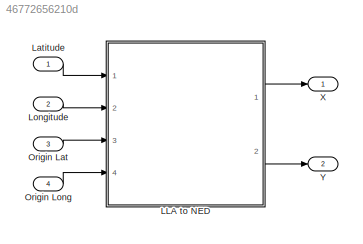
MODEL slx_46772656210d
KIND model
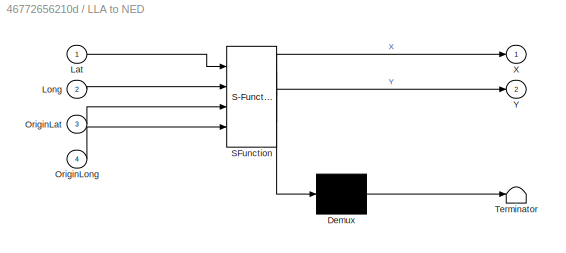
BLOCK [SubSystem] LLA to NED
  ErrorFcn = Stateflow.Translate.translate
  PermitHierarchicalResolution = ExplicitOnly
  Ports = [4, 2]
  RequestExecContextInheritance = off
  SFBlockType = MATLAB Function
  TreatAsAtomicUnit = on
BLOCK [Demux] LLA to NED/ Demux 
  Outputs = 1
  Ports = [1, 1]
BLOCK [S-Function] LLA to NED/ SFunction 
  EnableBusSupport = on
  FunctionName = sf_sfun
  PortCounts = [4 3]
  Ports = [4, 3]
  Tag = Stateflow S-Function LLA2NEDv2 8
BLOCK [Terminator] LLA to NED/ Terminator 
BLOCK [Inport] LLA to NED/Lat
  IconDisplay = Port number
BLOCK [Inport] LLA to NED/Long
  IconDisplay = Port number
  Port = 2
BLOCK [Inport] LLA to NED/OriginLat
  IconDisplay = Port number
  Port = 3
BLOCK [Inport] LLA to NED/OriginLong
  IconDisplay = Port number
  Port = 4
BLOCK [Outport] LLA to NED/X
  IconDisplay = Port number
BLOCK [Outport] LLA to NED/Y
  IconDisplay = Port number
  Port = 2
BLOCK [Inport] Latitude
  IconDisplay = Port number
BLOCK [Inport] Longitude
  IconDisplay = Port number
  Port = 2
BLOCK [Inport] Origin Lat
  IconDisplay = Port number
  Port = 3
BLOCK [Inport] Origin Long
  IconDisplay = Port number
  Port = 4
BLOCK [Outport] X
  IconDisplay = Port number
BLOCK [Outport] Y
  IconDisplay = Port number
  Port = 2
LINE LLA to NED:1 -> X:1
LINE LLA to NED:2 -> Y:1
LINE Latitude:1 -> LLA to NED:1
LINE Longitude:1 -> LLA to NED:2
LINE Origin Lat:1 -> LLA to NED:3
LINE Origin Long:1 -> LLA to NED:4
